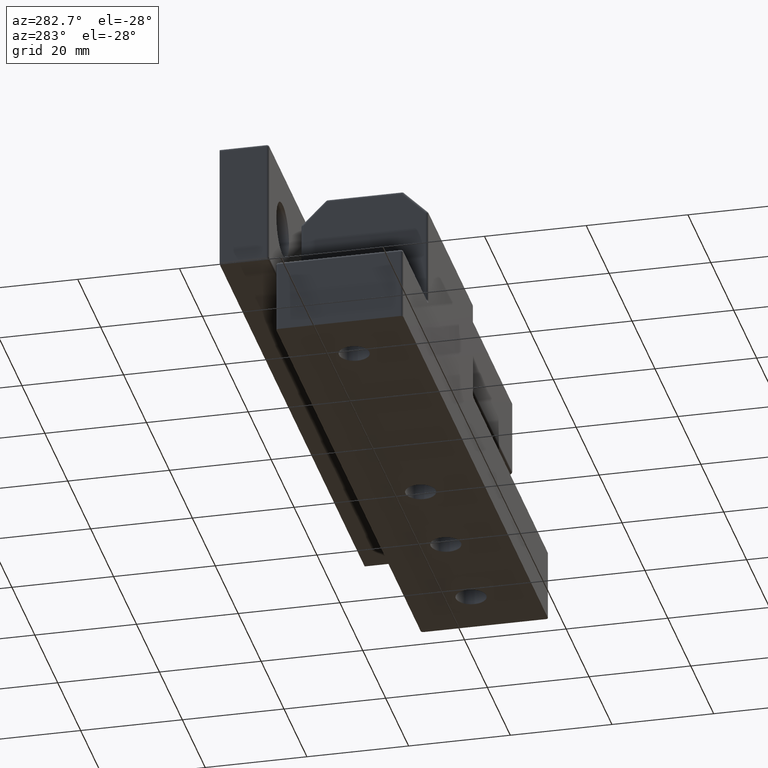
[diagram: clean part render]
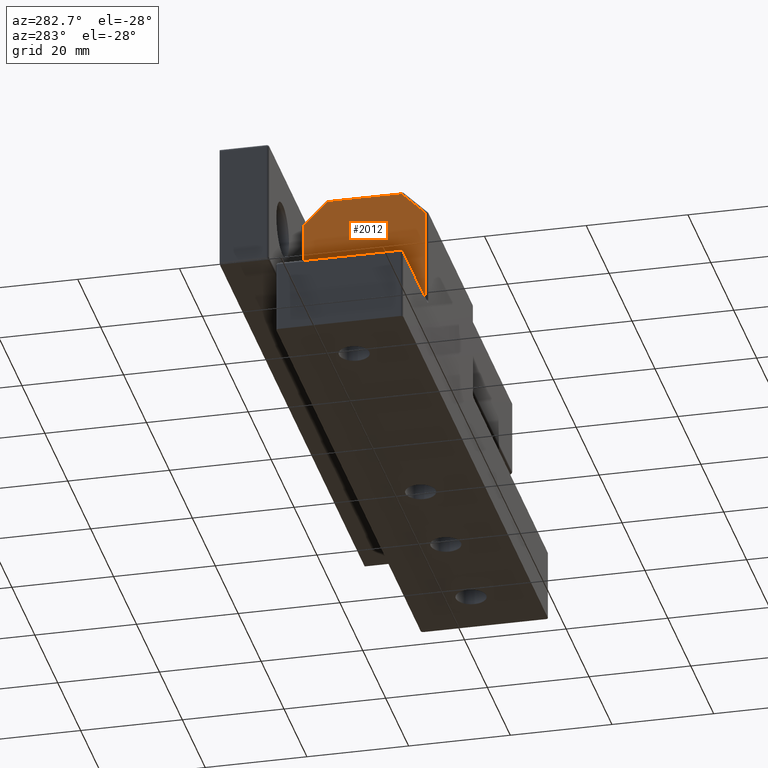
[diagram: same view with one face highlighted and labeled with its STEP entity id]
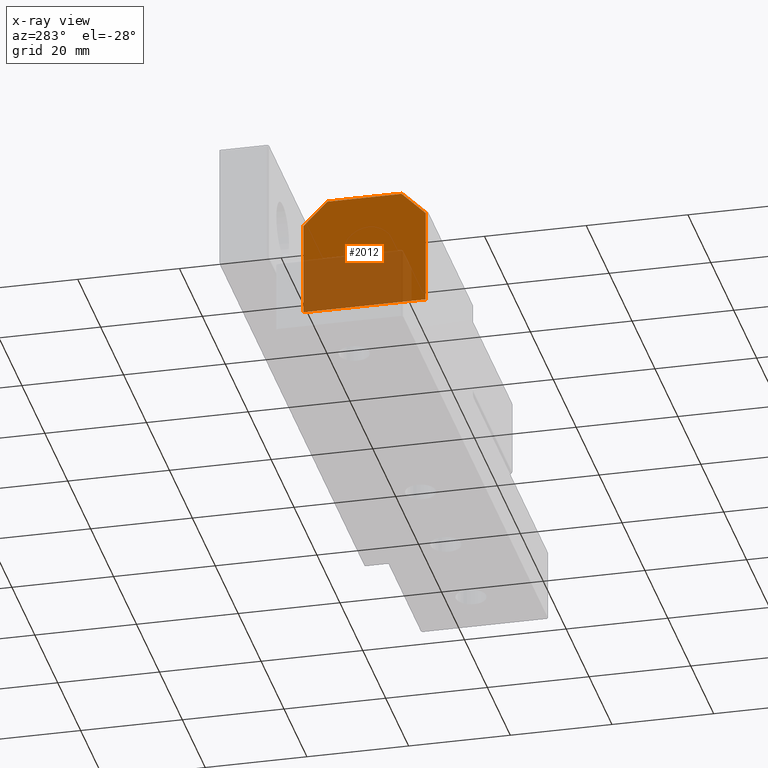
[diagram: x-ray of the same camera — body ghosted, the highlighted face saturated]
A machine part, auxiliary view. The second image highlights one B-rep face of the part: STEP entity #2012.
The next image is the same camera in x-ray: the body ghosted, the highlighted face saturated — about 44% of this face is hidden behind the body in this view.
In plain terms, the highlighted planar face has unit normal (-1, 0, 0).
Its self-contained STEP definition (entity closure, byte-faithful):
#110=PLANE('',#2232);
#166=LINE('',#3345,#278);
#170=LINE('',#3351,#282);
#178=LINE('',#3363,#290);
#181=LINE('',#3367,#293);
#186=LINE('',#3375,#298);
#188=LINE('',#3378,#300);
#278=VECTOR('',#2626,18.7928932188135);
#282=VECTOR('',#2634,6.65685424949238);
#290=VECTOR('',#2650,14.5857864376269);
#293=VECTOR('',#2655,24.);
#298=VECTOR('',#2666,6.65685424949235);
#300=VECTOR('',#2670,18.7928932188135);
#491=FACE_OUTER_BOUND('',#649,.T.);
#649=EDGE_LOOP('',(#1597,#1598,#1599,#1600,#1601,#1602));
#969=VERTEX_POINT('',#3213);
#992=VERTEX_POINT('',#3276);
#993=VERTEX_POINT('',#3283);
#1004=VERTEX_POINT('',#3313);
#1007=VERTEX_POINT('',#3324);
#1013=VERTEX_POINT('',#3338);
#1202=EDGE_CURVE('',#1013,#1004,#166,.T.);
#1206=EDGE_CURVE('',#1007,#1013,#170,.T.);
#1214=EDGE_CURVE('',#993,#1007,#178,.T.);
#1217=EDGE_CURVE('',#1004,#992,#181,.T.);
#1222=EDGE_CURVE('',#969,#993,#186,.T.);
#1224=EDGE_CURVE('',#992,#969,#188,.T.);
#1597=ORIENTED_EDGE('',*,*,#1202,.F.);
#1598=ORIENTED_EDGE('',*,*,#1206,.F.);
#1599=ORIENTED_EDGE('',*,*,#1214,.F.);
#1600=ORIENTED_EDGE('',*,*,#1222,.F.);
#1601=ORIENTED_EDGE('',*,*,#1224,.F.);
#1602=ORIENTED_EDGE('',*,*,#1217,.F.);
#2012=ADVANCED_FACE('',(#491),#110,.T.);
#2232=AXIS2_PLACEMENT_3D('',#3417,#2718,#2719);
#2626=DIRECTION('',(0.,0.,-1.));
#2634=DIRECTION('',(2.51214793389405E-16,-0.707106781186548,-0.707106781186547));
#2650=DIRECTION('',(3.5527136788005E-16,-1.,0.));
#2655=DIRECTION('',(-3.5527136788005E-16,1.,0.));
#2666=DIRECTION('',(2.51214793389404E-16,-0.707106781186548,0.707106781186547));
#2670=DIRECTION('',(0.,0.,1.));
#2718=DIRECTION('center_axis',(-1.,-3.5527136788005E-16,0.));
#2719=DIRECTION('ref_axis',(0.,0.,1.));
#3213=CARTESIAN_POINT('',(-41.5,12.,33.7928932188135));
#3276=CARTESIAN_POINT('',(-41.5,12.,15.));
#3283=CARTESIAN_POINT('',(-41.5,7.29289321881346,38.5));
#3313=CARTESIAN_POINT('',(-41.5,-12.,15.));
#3324=CARTESIAN_POINT('',(-41.5,-7.29289321881345,38.5));
#3338=CARTESIAN_POINT('',(-41.5,-12.,33.7928932188135));
#3345=CARTESIAN_POINT('',(-41.5,-12.,12.9341996193842));
#3351=CARTESIAN_POINT('',(-41.5,-8.55434679971463,37.2385464190988));
#3363=CARTESIAN_POINT('',(-41.5,3.75000000000001,38.5));
#3367=CARTESIAN_POINT('',(-41.5,-5.53198689874355E-15,15.));
#3375=CARTESIAN_POINT('',(-41.5,11.0543467997146,34.7385464190988));
#3378=CARTESIAN_POINT('',(-41.5,12.,12.9341996193842));
#3417=CARTESIAN_POINT('Origin',(-41.5,5.90023401878531E-15,25.8683992387683));